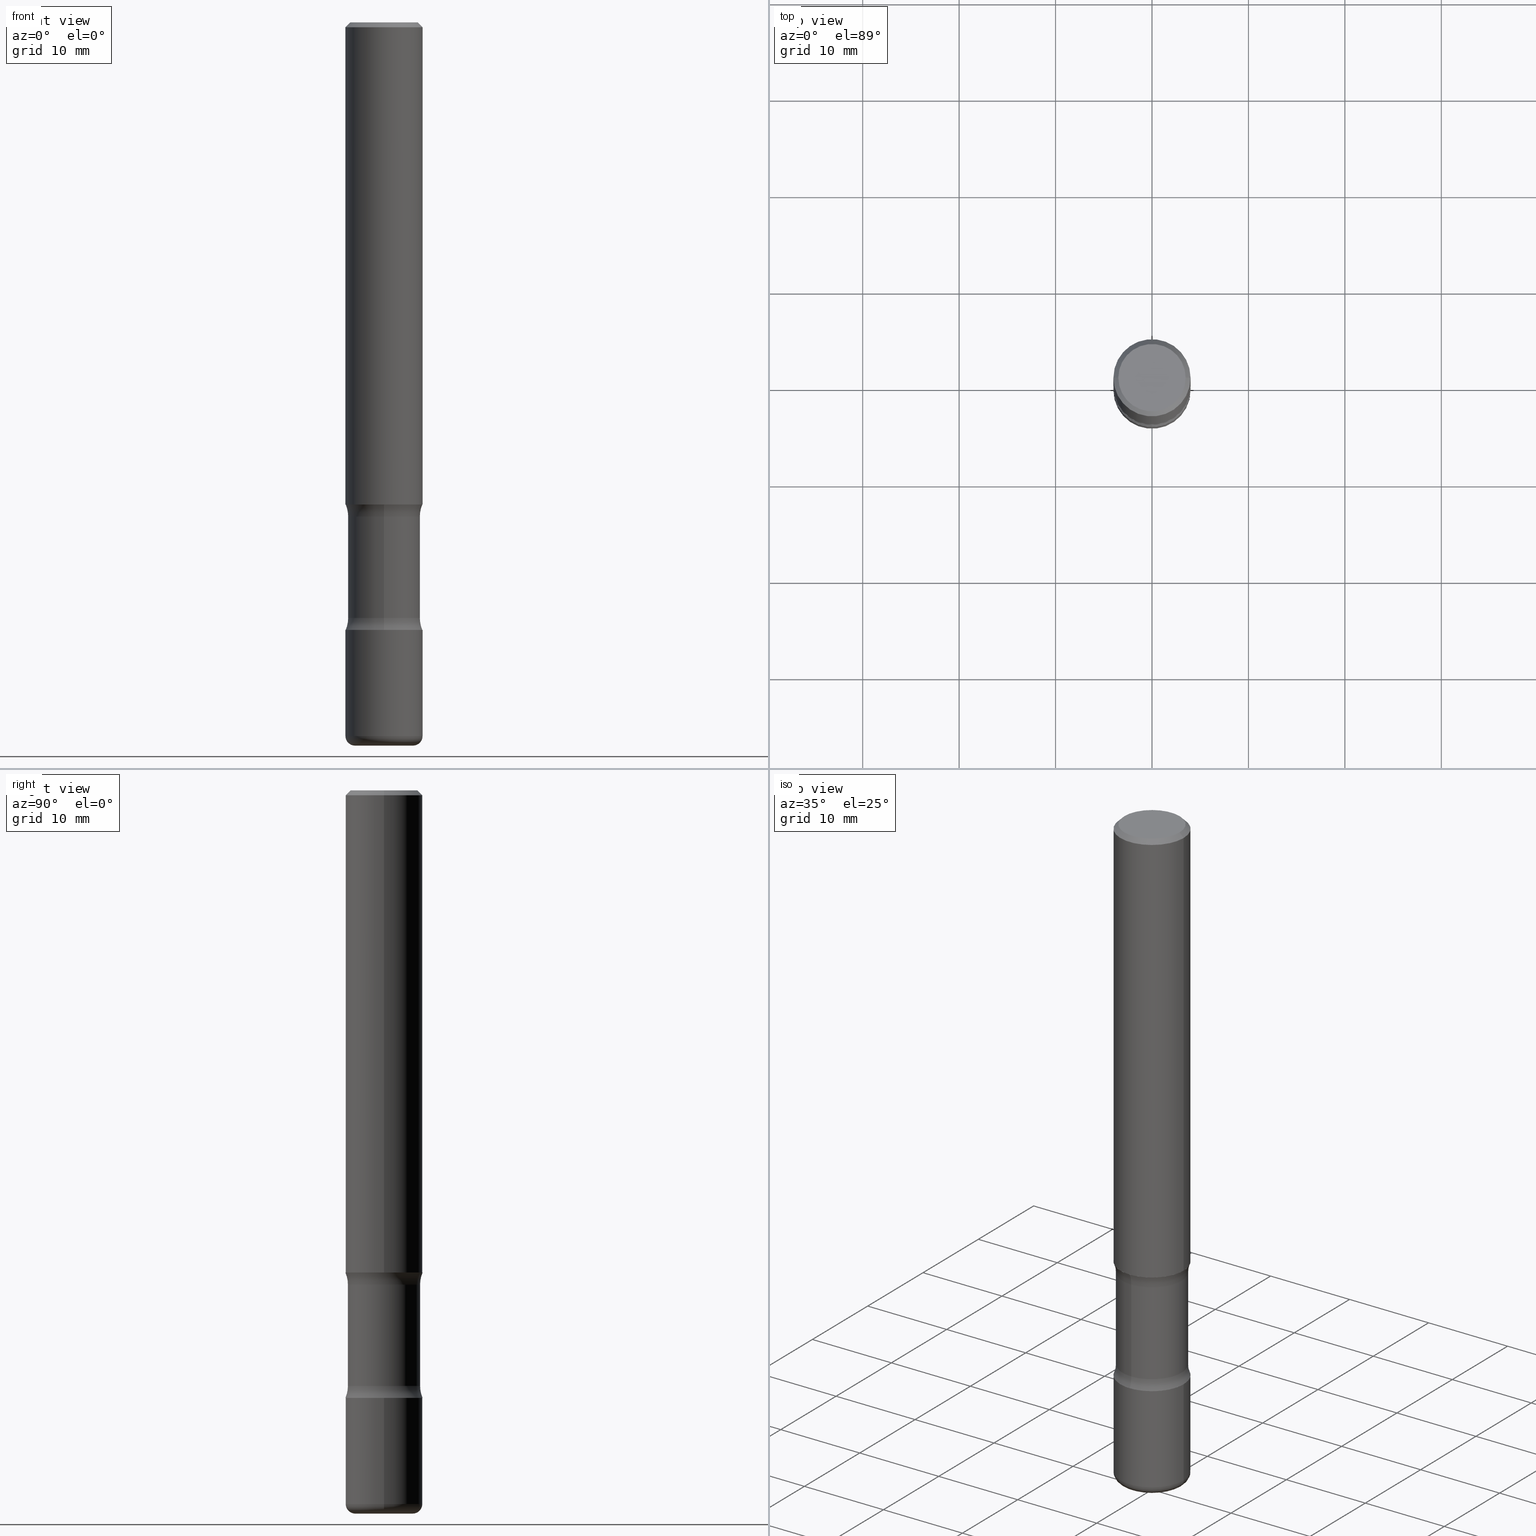
[diagram: canonical four-view strip — front | top / right | iso, engineering-drawing reading convention]
A machine part, canonical four-view strip (front | top / right | iso — engineering-drawing reading convention). The complete STEP part file that produces these views, byte-faithful:
ISO-10303-21;
HEADER;
FILE_DESCRIPTION (( 'STEP AP203' ),
    '1' );
FILE_NAME ('44775.STEP',
    '2024-03-02T03:06:55',
    ( '' ),
    ( '' ),
    'SwSTEP 2.0',
    'SolidWorks 2023',
    '' );
FILE_SCHEMA (( 'CONFIG_CONTROL_DESIGN' ));
ENDSEC;

DATA;
#1 = CARTESIAN_POINT ( 'NONE',  ( 1.099816621735648420E-15, 0.1574999999999914524, -2.480399999999999938 ) ) ;
#2 = VERTEX_POINT ( 'NONE', #127 ) ;
#3 = ORIENTED_EDGE ( 'NONE', *, *, #547, .T. ) ;
#4 = AXIS2_PLACEMENT_3D ( 'NONE', #357, #360, #184 ) ;
#5 = PRODUCT_DEFINITION_FORMATION_WITH_SPECIFIED_SOURCE ( 'ANY', '', #88, .NOT_KNOWN. ) ;
#6 = CARTESIAN_POINT ( 'NONE',  ( 6.065740826861612418E-29, -8.660270312866537270E-15, -2.480399999999999494 ) ) ;
#7 = DIRECTION ( 'NONE',  ( 1.000000000000000000, -6.982962677686265922E-15, 4.876176775795935232E-29 ) ) ;
#8 = VERTEX_POINT ( 'NONE', #423 ) ;
#9 = EDGE_CURVE ( 'NONE', #515, #482, #283, .T. ) ;
#10 = CARTESIAN_POINT ( 'NONE',  ( 0.1575000000000001399, -9.760086934602125539E-15, -2.480399999999999494 ) ) ;
#11 = VERTEX_POINT ( 'NONE', #387 ) ;
#12 = EDGE_CURVE ( 'NONE', #11, #255, #383, .T. ) ;
#13 = AXIS2_PLACEMENT_3D ( 'NONE', #560, #169, #509 ) ;
#14 = CARTESIAN_POINT ( 'NONE',  ( 9.601573681818610811E-16, 0.1374999999999999278, -4.779444278458821021E-16 ) ) ;
#15 = EDGE_LOOP ( 'NONE', ( #29, #273 ) ) ;
#16 = CARTESIAN_POINT ( 'NONE',  ( 5.943628762121094077E-29, -8.490077908476165751E-15, -2.431059575397043204 ) ) ;
#17 = APPROVAL_STATUS ( 'not_yet_approved' ) ;
#18 = DIRECTION ( 'NONE',  ( 6.982962677686265133E-15, 1.000000000000000000, -3.469013325287950138E-15 ) ) ;
#19 = PERSON_AND_ORGANIZATION ( #260, #534 ) ;
#20 = DATE_AND_TIME ( #277, #91 ) ;
#21 = CIRCLE ( 'NONE', #272, 0.1575000000000001399 ) ;
#22 = AXIS2_PLACEMENT_3D ( 'NONE', #6, #94, #439 ) ;
#23 = EDGE_CURVE ( 'NONE', #515, #300, #514, .T. ) ;
#24 = CARTESIAN_POINT ( 'NONE',  ( -1.045711407310277305E-15, -0.1473500000000070587, -2.017840424602955984 ) ) ;
#25 = EDGE_LOOP ( 'NONE', ( #84, #223 ) ) ;
#26 = FACE_OUTER_BOUND ( 'NONE', #218, .T. ) ;
#27 = ORIENTED_EDGE ( 'NONE', *, *, #251, .F. ) ;
#28 = CARTESIAN_POINT ( 'NONE',  ( 6.065740826861612418E-29, -8.660270312866537270E-15, -2.480399999999999494 ) ) ;
#29 = ORIENTED_EDGE ( 'NONE', *, *, #249, .F. ) ;
#30 = DIRECTION ( 'NONE',  ( -6.982962677686265922E-15, -1.000000000000000000, 3.449350218607032856E-15 ) ) ;
#31 = ORIENTED_EDGE ( 'NONE', *, *, #147, .F. ) ;
#32 = CARTESIAN_POINT ( 'NONE',  ( 4.934565814225900815E-29, -7.045252187264551691E-15, -2.017840424602956428 ) ) ;
#33 = CARTESIAN_POINT ( 'NONE',  ( 7.124628819939776708E-29, -1.017208173258561931E-14, -2.913399999999999768 ) ) ;
#34 = CARTESIAN_POINT ( 'NONE',  ( -0.1575000000000001399, -8.297071213903919899E-15, -2.480399999999999494 ) ) ;
#35 = AXIS2_PLACEMENT_3D ( 'NONE', #33, #248, #557 ) ;
#36 = CIRCLE ( 'NONE', #292, 0.1250000000000000555 ) ;
#37 = AXIS2_PLACEMENT_3D ( 'NONE', #280, #362, #529 ) ;
#38 = FACE_OUTER_BOUND ( 'NONE', #113, .T. ) ;
#39 = DIRECTION ( 'NONE',  ( 1.000000000000000000, -6.860497997771530774E-15, 4.841314837039559601E-29 ) ) ;
#40 = ORIENTED_EDGE ( 'NONE', *, *, #309, .T. ) ;
#41 = ORIENTED_EDGE ( 'NONE', *, *, #559, .T. ) ;
#42 = PLANE ( 'NONE',  #488 ) ;
#43 = CIRCLE ( 'NONE', #350, 0.1575000000000001399 ) ;
#44 = EDGE_LOOP ( 'NONE', ( #471, #213, #90, #235 ) ) ;
#45 = TOROIDAL_SURFACE ( 'NONE', #200, 0.1181000000000001632, 0.03940000000000031671 ) ;
#46 = ADVANCED_FACE ( 'NONE', ( #38 ), #380, .F. ) ;
#47 = CYLINDRICAL_SURFACE ( 'NONE', #487, 0.1473500000000000087 ) ;
#48 = ORIENTED_EDGE ( 'NONE', *, *, #110, .F. ) ;
#49 = CARTESIAN_POINT ( 'NONE',  ( 5.945080357611152317E-29, -8.487999141114716497E-15, -2.431059575397043204 ) ) ;
#50 = ORIENTED_EDGE ( 'NONE', *, *, #59, .T. ) ;
#51 = DIRECTION ( 'NONE',  ( -2.445468806185136597E-29, 3.491481338843145583E-15, 1.000000000000000000 ) ) ;
#52 = ORIENTED_EDGE ( 'NONE', *, *, #110, .T. ) ;
#53 = VECTOR ( 'NONE', #303, 39.37007874015748143 ) ;
#54 = EDGE_CURVE ( 'NONE', #349, #482, #270, .T. ) ;
#55 = PERSON_AND_ORGANIZATION ( #260, #534 ) ;
#56 = DIRECTION ( 'NONE',  ( 1.000000000000000000, -6.982962677686265922E-15, 4.876176775795935793E-29 ) ) ;
#57 = PERSON_AND_ORGANIZATION_ROLE ( 'creator' ) ;
#58 = DATE_TIME_ROLE ( 'classification_date' ) ;
#59 = EDGE_CURVE ( 'NONE', #237, #482, #464, .T. ) ;
#60 = CYLINDRICAL_SURFACE ( 'NONE', #330, 0.1575000000000001399 ) ;
#61 = AXIS2_PLACEMENT_3D ( 'NONE', #304, #133, #178 ) ;
#62 = CC_DESIGN_APPROVAL ( #441, ( #256 ) ) ;
#63 = EDGE_LOOP ( 'NONE', ( #239, #131, #155, #543 ) ) ;
#64 = CC_DESIGN_PERSON_AND_ORGANIZATION_ASSIGNMENT ( #321, #57, ( #256 ) ) ;
#65 = CIRCLE ( 'NONE', #378, 0.1374999999999999278 ) ;
#66 = VERTEX_POINT ( 'NONE', #77 ) ;
#67 = DIRECTION ( 'NONE',  ( -2.445468806185136597E-29, 3.491481338843145583E-15, 1.000000000000000000 ) ) ;
#68 = EDGE_LOOP ( 'NONE', ( #71, #201, #460, #435 ) ) ;
#69 = CARTESIAN_POINT ( 'NONE',  ( 6.065740826861612418E-29, -8.660270312866537270E-15, -2.480399999999999494 ) ) ;
#70 = EDGE_CURVE ( 'NONE', #66, #2, #478, .T. ) ;
#71 = ORIENTED_EDGE ( 'NONE', *, *, #249, .T. ) ;
#72 = VECTOR ( 'NONE', #536, 39.37007874015748143 ) ;
#73 = APPROVAL_PERSON_ORGANIZATION ( #144, #394, #276 ) ;
#74 = DIRECTION ( 'NONE',  ( 6.982962677686265133E-15, 1.000000000000000000, -3.469013325287950138E-15 ) ) ;
#75 = DIRECTION ( 'NONE',  ( 1.000000000000000000, -6.982962677686268288E-15, 0.000000000000000000 ) ) ;
#76 = CARTESIAN_POINT ( 'NONE',  ( 0.1181000000000001632, -1.113433398957078995E-14, -2.952800000000000313 ) ) ;
#77 = CARTESIAN_POINT ( 'NONE',  ( -0.1575000000000001676, -2.352300512322635166E-15, -1.968499999999999694 ) ) ;
#78 = AXIS2_PLACEMENT_3D ( 'NONE', #345, #80, #556 ) ;
#79 = CC_DESIGN_APPROVAL ( #394, ( #452 ) ) ;
#80 = DIRECTION ( 'NONE',  ( 2.474888810202925163E-29, -3.449350218607033250E-15, -1.000000000000000000 ) ) ;
#81 = CARTESIAN_POINT ( 'NONE',  ( 5.943628762121094077E-29, -8.490077908476165751E-15, -2.431059575397043204 ) ) ;
#82 = EDGE_LOOP ( 'NONE', ( #27, #426 ) ) ;
#83 = FACE_OUTER_BOUND ( 'NONE', #15, .T. ) ;
#84 = ORIENTED_EDGE ( 'NONE', *, *, #365, .F. ) ;
#85 = MANIFOLD_SOLID_BREP ( 'Body-Move/Copy2[1]', #99 ) ;
#86 = EDGE_CURVE ( 'NONE', #334, #546, #347, .T. ) ;
#87 = DIRECTION ( 'NONE',  ( -2.438088387897960049E-29, 3.491481338843145188E-15, 1.000000000000000000 ) ) ;
#88 = PRODUCT ( '44775', '44775', '', ( #448 ) ) ;
#89 = CIRCLE ( 'NONE', #516, 0.1250000000000000555 ) ;
#90 = ORIENTED_EDGE ( 'NONE', *, *, #150, .T. ) ;
#91 = LOCAL_TIME ( 22, 6, 55.00000000000000000, #101 ) ;
#92 = CARTESIAN_POINT ( 'NONE',  ( -0.1181000000000001632, -9.332930761652938750E-15, -2.913399999999999768 ) ) ;
#93 = DATE_AND_TIME ( #231, #462 ) ;
#94 = DIRECTION ( 'NONE',  ( -2.445468806185136597E-29, 3.491481338843145583E-15, 1.000000000000000000 ) ) ;
#95 = ORIENTED_EDGE ( 'NONE', *, *, #251, .T. ) ;
#96 = APPROVAL_DATE_TIME ( #93, #441 ) ;
#97 = DIRECTION ( 'NONE',  ( 7.105427357601001859E-15, 1.000000000000000000, -3.491481338843145583E-15 ) ) ;
#98 = VERTEX_POINT ( 'NONE', #162 ) ;
#99 = CLOSED_SHELL ( 'NONE', ( #513, #170, #385, #245, #230, #46 ) ) ;
#100 = PERSON_AND_ORGANIZATION ( #260, #534 ) ;
#101 = COORDINATED_UNIVERSAL_TIME_OFFSET ( 5, 0, .BEHIND. ) ;
#102 = EDGE_CURVE ( 'NONE', #334, #328, #65, .T. ) ;
#103 = APPLICATION_PROTOCOL_DEFINITION ( 'international standard', 'config_control_design', 1994, #154 ) ;
#104 = LINE ( 'NONE', #281, #391 ) ;
#105 = DIRECTION ( 'NONE',  ( 2.474888810202925163E-29, -3.449350218607033250E-15, -1.000000000000000000 ) ) ;
#106 = AXIS2_PLACEMENT_3D ( 'NONE', #327, #148, #152 ) ;
#107 = CIRCLE ( 'NONE', #364, 0.03940000000000033753 ) ;
#108 = ORIENTED_EDGE ( 'NONE', *, *, #23, .T. ) ;
#109 = ADVANCED_FACE ( 'NONE', ( #386 ), #373, .F. ) ;
#110 = EDGE_CURVE ( 'NONE', #255, #11, #432, .T. ) ;
#111 = UNCERTAINTY_MEASURE_WITH_UNIT (LENGTH_MEASURE( 1.000000000000000082E-05 ), #537, 'distance_accuracy_value', 'NONE');
#112 = FACE_OUTER_BOUND ( 'NONE', #295, .T. ) ;
#113 = EDGE_LOOP ( 'NONE', ( #525, #151 ) ) ;
#114 = DIRECTION ( 'NONE',  ( 1.000000000000000000, -6.982962677686263555E-15, 0.000000000000000000 ) ) ;
#115 = DIRECTION ( 'NONE',  ( 1.000000000000000000, -6.982962677686265922E-15, 4.876173381029102845E-29 ) ) ;
#116 = VERTEX_POINT ( 'NONE', #34 ) ;
#117 = FACE_OUTER_BOUND ( 'NONE', #457, .T. ) ;
#118 = CC_DESIGN_DATE_AND_TIME_ASSIGNMENT ( #401, #58, ( #452 ) ) ;
#119 = CYLINDRICAL_SURFACE ( 'NONE', #243, 0.1575000000000000289 ) ;
#120 = AXIS2_PLACEMENT_3D ( 'NONE', #49, #136, #434 ) ;
#121 = ORIENTED_EDGE ( 'NONE', *, *, #9, .F. ) ;
#122 = ADVANCED_FACE ( 'NONE', ( #210 ), #554, .T. ) ;
#123 = CARTESIAN_POINT ( 'NONE',  ( 6.065740826861612418E-29, -8.660270312866537270E-15, -2.480399999999999494 ) ) ;
#124 = CARTESIAN_POINT ( 'NONE',  ( -0.1374999999999999278, 9.950721815702923357E-16, 4.268512490093574228E-18 ) ) ;
#125 = CARTESIAN_POINT ( 'NONE',  ( 6.065740826861612418E-29, -8.660270312866537270E-15, -2.480399999999999494 ) ) ;
#126 = EDGE_CURVE ( 'NONE', #300, #515, #43, .T. ) ;
#127 = CARTESIAN_POINT ( 'NONE',  ( 0.1575000000000001676, -7.972797637248319976E-15, -1.968499999999999694 ) ) ;
#128 = EDGE_CURVE ( 'NONE', #198, #316, #356, .T. ) ;
#129 = TOROIDAL_SURFACE ( 'NONE', #322, 0.2723499999999999810, 0.1250000000000000555 ) ;
#130 = AXIS2_PLACEMENT_3D ( 'NONE', #306, #472, #533 ) ;
#131 = ORIENTED_EDGE ( 'NONE', *, *, #9, .T. ) ;
#132 = CARTESIAN_POINT ( 'NONE',  ( 7.234878300801473340E-29, -1.028974335613649852E-14, -2.952799999999999869 ) ) ;
#133 = DIRECTION ( 'NONE',  ( 2.474888810202925163E-29, -3.449350218607033250E-15, -1.000000000000000000 ) ) ;
#134 = DIRECTION ( 'NONE',  ( -1.000000000000000000, 6.982962677686265922E-15, -4.876176775795935793E-29 ) ) ;
#135 = PERSON_AND_ORGANIZATION_ROLE ( 'design_supplier' ) ;
#136 = DIRECTION ( 'NONE',  ( 2.474888810202925163E-29, -3.449350218607033250E-15, -1.000000000000000000 ) ) ;
#137 = ORIENTED_EDGE ( 'NONE', *, *, #86, .T. ) ;
#138 = DIRECTION ( 'NONE',  ( 2.474888810202925163E-29, -3.449350218607033250E-15, -1.000000000000000000 ) ) ;
#139 = PERSON_AND_ORGANIZATION_ROLE ( 'design_owner' ) ;
#140 = CC_DESIGN_PERSON_AND_ORGANIZATION_ASSIGNMENT ( #100, #189, ( #5 ) ) ;
#141 = FACE_OUTER_BOUND ( 'NONE', #353, .T. ) ;
#142 = ORIENTED_EDGE ( 'NONE', *, *, #489, .F. ) ;
#143 = AXIS2_PLACEMENT_3D ( 'NONE', #69, #157, #30 ) ;
#144 = PERSON_AND_ORGANIZATION ( #260, #534 ) ;
#145 = AXIS2_PLACEMENT_3D ( 'NONE', #222, #51, #7 ) ;
#146 = CARTESIAN_POINT ( 'NONE',  ( -1.043851414335219820E-46, 1.490343170380447200E-32, 4.268512490100411279E-18 ) ) ;
#147 = EDGE_CURVE ( 'NONE', #98, #400, #89, .T. ) ;
#148 = DIRECTION ( 'NONE',  ( -2.445468806185136597E-29, 3.491481338843145583E-15, 1.000000000000000000 ) ) ;
#149 = DIRECTION ( 'NONE',  ( 6.982962677686265133E-15, 1.000000000000000000, -3.469013325287950138E-15 ) ) ;
#150 = EDGE_CURVE ( 'NONE', #2, #8, #463, .T. ) ;
#151 = ORIENTED_EDGE ( 'NONE', *, *, #428, .T. ) ;
#152 = DIRECTION ( 'NONE',  ( 1.000000000000000000, -6.982962677686266711E-15, 0.000000000000000000 ) ) ;
#153 = AXIS2_PLACEMENT_3D ( 'NONE', #507, #465, #75 ) ;
#154 = APPLICATION_CONTEXT ( 'configuration controlled 3d designs of mechanical parts and assemblies' ) ;
#155 = ORIENTED_EDGE ( 'NONE', *, *, #259, .T. ) ;
#156 = ADVANCED_FACE ( 'NONE', ( #368 ), #161, .T. ) ;
#157 = DIRECTION ( 'NONE',  ( -2.474888810202925163E-29, 3.449350218607032856E-15, 1.000000000000000000 ) ) ;
#158 = ORIENTED_EDGE ( 'NONE', *, *, #54, .F. ) ;
#159 = CARTESIAN_POINT ( 'NONE',  ( 4.890937612370273159E-31, -6.982962677686291609E-17, -0.02000000000000000042 ) ) ;
#160 = DIRECTION ( 'NONE',  ( 2.474888810202925163E-29, -3.449350218607033250E-15, -1.000000000000000000 ) ) ;
#161 = CONICAL_SURFACE ( 'NONE', #374, 0.1574999999999999178, 0.7853981633974479459 ) ;
#162 = CARTESIAN_POINT ( 'NONE',  ( 1.028939550557120386E-15, 0.1473499999999929033, -2.017840424602956872 ) ) ;
#163 =( GEOMETRIC_REPRESENTATION_CONTEXT ( 3 ) GLOBAL_UNCERTAINTY_ASSIGNED_CONTEXT ( ( #111 ) ) GLOBAL_UNIT_ASSIGNED_CONTEXT ( ( #537, #407, #539 ) ) REPRESENTATION_CONTEXT ( 'NONE', 'WORKASPACE' ) );
#164 = CARTESIAN_POINT ( 'NONE',  ( 1.028939550557130839E-15, 0.1473499999999915433, -2.431059575397043648 ) ) ;
#165 = ADVANCED_FACE ( 'NONE', ( #370 ), #119, .T. ) ;
#166 = DIRECTION ( 'NONE',  ( 6.982962677686265922E-15, 1.000000000000000000, -3.449350218607033250E-15 ) ) ;
#167 = ADVANCED_FACE ( 'NONE', ( #410 ), #376, .F. ) ;
#168 = DIRECTION ( 'NONE',  ( -2.445468806185136597E-29, 3.491481338843145583E-15, 1.000000000000000000 ) ) ;
#169 = DIRECTION ( 'NONE',  ( -2.445468806185136597E-29, 3.491481338843145583E-15, 1.000000000000000000 ) ) ;
#170 = ADVANCED_FACE ( 'NONE', ( #26 ), #209, .T. ) ;
#171 = ORIENTED_EDGE ( 'NONE', *, *, #59, .F. ) ;
#172 = EDGE_CURVE ( 'NONE', #328, #8, #333, .T. ) ;
#173 = AXIS2_PLACEMENT_3D ( 'NONE', #146, #168, #115 ) ;
#174 = ORIENTED_EDGE ( 'NONE', *, *, #220, .T. ) ;
#175 = DIRECTION ( 'NONE',  ( 2.438088387897960049E-29, -3.491481338843145188E-15, -1.000000000000000000 ) ) ;
#176 = EDGE_LOOP ( 'NONE', ( #250, #108 ) ) ;
#177 = CARTESIAN_POINT ( 'NONE',  ( -1.045711407310266063E-15, -0.1473500000000085020, -2.431059575397042760 ) ) ;
#178 = DIRECTION ( 'NONE',  ( 6.982962677686265133E-15, 1.000000000000000000, -3.707971487837480522E-15 ) ) ;
#179 = CIRCLE ( 'NONE', #61, 0.1473499999999999810 ) ;
#180 = ORIENTED_EDGE ( 'NONE', *, *, #409, .T. ) ;
#181 = CC_DESIGN_SECURITY_CLASSIFICATION ( #452, ( #5 ) ) ;
#182 = APPLICATION_PROTOCOL_DEFINITION ( 'international standard', 'config_control_design', 1994, #413 ) ;
#183 = VECTOR ( 'NONE', #381, 39.37007874015748143 ) ;
#184 = DIRECTION ( 'NONE',  ( 1.000000000000000000, -6.982962677686267499E-15, 4.876176775795935232E-29 ) ) ;
#185 = ORIENTED_EDGE ( 'NONE', *, *, #447, .T. ) ;
#186 = APPROVAL_STATUS ( 'not_yet_approved' ) ;
#187 = EDGE_CURVE ( 'NONE', #255, #408, #421, .T. ) ;
#188 = DIRECTION ( 'NONE',  ( 6.982962677686265922E-15, 1.000000000000000000, -3.449350218607032856E-15 ) ) ;
#189 = PERSON_AND_ORGANIZATION_ROLE ( 'creator' ) ;
#190 = EDGE_CURVE ( 'NONE', #8, #546, #225, .T. ) ;
#191 = CIRCLE ( 'NONE', #503, 0.1575000000000001399 ) ;
#192 = APPROVAL_ROLE ( '' ) ;
#193 = DIRECTION ( 'NONE',  ( -2.445468806185136597E-29, 3.491481338843145583E-15, 1.000000000000000000 ) ) ;
#194 = CC_DESIGN_PERSON_AND_ORGANIZATION_ASSIGNMENT ( #318, #135, ( #5 ) ) ;
#195 = DIRECTION ( 'NONE',  ( -6.982962677686265922E-15, -1.000000000000000000, 0.000000000000000000 ) ) ;
#196 = ORIENTED_EDGE ( 'NONE', *, *, #172, .F. ) ;
#197 = CARTESIAN_POINT ( 'NONE',  ( 4.813905344975440714E-29, -6.872981015512730918E-15, -1.968499999999999694 ) ) ;
#198 = VERTEX_POINT ( 'NONE', #418 ) ;
#199 = CARTESIAN_POINT ( 'NONE',  ( 7.220980290903472425E-29, -1.030964609733604011E-14, -2.952800000000000313 ) ) ;
#200 = AXIS2_PLACEMENT_3D ( 'NONE', #541, #287, #456 ) ;
#201 = ORIENTED_EDGE ( 'NONE', *, *, #282, .T. ) ;
#202 = DIRECTION ( 'NONE',  ( 2.474888810202925163E-29, -3.449350218607033250E-15, -1.000000000000000000 ) ) ;
#203 = DIRECTION ( 'NONE',  ( -2.445468806185136877E-29, 3.491481338843145188E-15, 1.000000000000000000 ) ) ;
#204 =( LENGTH_UNIT ( ) NAMED_UNIT ( * ) SI_UNIT ( $, .METRE. ) );
#205 = DIRECTION ( 'NONE',  ( 2.474888810202925163E-29, -3.449350218607033250E-15, -1.000000000000000000 ) ) ;
#206 = DIRECTION ( 'NONE',  ( 2.474888810202925163E-29, -3.449350218607033250E-15, -1.000000000000000000 ) ) ;
#207 = ADVANCED_FACE ( 'NONE', ( #548 ), #443, .F. ) ;
#208 = DIRECTION ( 'NONE',  ( -1.000000000000000000, 6.982962677686265922E-15, -4.883557194083112340E-29 ) ) ;
#209 = TOROIDAL_SURFACE ( 'NONE', #233, 0.1181000000000001632, 0.03940000000000031671 ) ;
#210 = FACE_OUTER_BOUND ( 'NONE', #518, .T. ) ;
#211 = LOCAL_TIME ( 22, 6, 55.00000000000000000, #442 ) ;
#212 = DIRECTION ( 'NONE',  ( 6.860497997771530774E-15, 1.000000000000000000, 0.000000000000000000 ) ) ;
#213 = ORIENTED_EDGE ( 'NONE', *, *, #70, .T. ) ;
#214 = FACE_OUTER_BOUND ( 'NONE', #332, .T. ) ;
#215 = ORIENTED_EDGE ( 'NONE', *, *, #12, .F. ) ;
#216 = CIRCLE ( 'NONE', #294, 0.1181000000000001632 ) ;
#217 = DIRECTION ( 'NONE',  ( 2.438088387897960049E-29, -3.491481338843145188E-15, -1.000000000000000000 ) ) ;
#218 = EDGE_LOOP ( 'NONE', ( #95, #358, #48, #346 ) ) ;
#219 = DIRECTION ( 'NONE',  ( -6.982962677686266711E-15, -1.000000000000000000, 3.491481338843145583E-15 ) ) ;
#220 = EDGE_CURVE ( 'NONE', #11, #116, #104, .T. ) ;
#221 = ORIENTED_EDGE ( 'NONE', *, *, #437, .T. ) ;
#222 = CARTESIAN_POINT ( 'NONE',  ( 0.000000000000000000, 0.000000000000000000, 0.000000000000000000 ) ) ;
#223 = ORIENTED_EDGE ( 'NONE', *, *, #409, .F. ) ;
#224 = CYLINDRICAL_SURFACE ( 'NONE', #4, 0.1575000000000000289 ) ;
#225 = CIRCLE ( 'NONE', #106, 0.1574999999999999178 ) ;
#226 = ORIENTED_EDGE ( 'NONE', *, *, #428, .F. ) ;
#227 = DATE_AND_TIME ( #403, #433 ) ;
#228 = FACE_OUTER_BOUND ( 'NONE', #25, .T. ) ;
#229 = COORDINATED_UNIVERSAL_TIME_OFFSET ( 5, 0, .BEHIND. ) ;
#230 = ADVANCED_FACE ( 'NONE', ( #331 ), #60, .T. ) ;
#231 = CALENDAR_DATE ( 2024, 1, 3 ) ;
#232 = CC_DESIGN_PERSON_AND_ORGANIZATION_ASSIGNMENT ( #55, #490, ( #452 ) ) ;
#233 = AXIS2_PLACEMENT_3D ( 'NONE', #293, #242, #493 ) ;
#234 = APPROVAL_PERSON_ORGANIZATION ( #19, #458, #268 ) ;
#235 = ORIENTED_EDGE ( 'NONE', *, *, #550, .F. ) ;
#236 = DIRECTION ( 'NONE',  ( 1.000000000000000000, -6.982962677686267499E-15, 4.876176775795935232E-29 ) ) ;
#237 = VERTEX_POINT ( 'NONE', #24 ) ;
#238 = DIRECTION ( 'NONE',  ( 1.000000000000000000, -6.982962677686267499E-15, 0.000000000000000000 ) ) ;
#239 = ORIENTED_EDGE ( 'NONE', *, *, #23, .F. ) ;
#240 = CARTESIAN_POINT ( 'NONE',  ( -0.1574999999999999178, 1.029986994958723590E-15, -0.02000000000000000042 ) ) ;
#241 = VECTOR ( 'NONE', #549, 39.37007874015748143 ) ;
#242 = DIRECTION ( 'NONE',  ( -2.445468806185136597E-29, 3.491481338843145583E-15, 1.000000000000000000 ) ) ;
#243 = AXIS2_PLACEMENT_3D ( 'NONE', #491, #379, #236 ) ;
#244 = LOCAL_TIME ( 22, 6, 55.00000000000000000, #229 ) ;
#245 = ADVANCED_FACE ( 'NONE', ( #112 ), #45, .T. ) ;
#246 = DIRECTION ( 'NONE',  ( 1.000000000000000000, -6.982962677686265922E-15, 4.876173381029102845E-29 ) ) ;
#247 = CARTESIAN_POINT ( 'NONE',  ( 0.1574999999999999178, -1.150358061425878486E-15, -0.02000000000000000042 ) ) ;
#248 = DIRECTION ( 'NONE',  ( -2.445468806185136597E-29, 3.491481338843145583E-15, 1.000000000000000000 ) ) ;
#249 = EDGE_CURVE ( 'NONE', #2, #66, #461, .T. ) ;
#250 = ORIENTED_EDGE ( 'NONE', *, *, #126, .T. ) ;
#251 = EDGE_CURVE ( 'NONE', #316, #198, #216, .T. ) ;
#252 = VECTOR ( 'NONE', #538, 39.37007874015748143 ) ;
#253 = DIRECTION ( 'NONE',  ( 1.000000000000000000, -6.860497997771530774E-15, 4.841314837039559601E-29 ) ) ;
#254 = DIRECTION ( 'NONE',  ( -2.445468806185136597E-29, 3.491481338843145583E-15, 1.000000000000000000 ) ) ;
#255 = VERTEX_POINT ( 'NONE', #475 ) ;
#256 = PRODUCT_DEFINITION ( 'UNKNOWN', '', #5, #336 ) ;
#257 = CARTESIAN_POINT ( 'NONE',  ( 4.813905344975440714E-29, -6.872981015512730918E-15, -1.968499999999999694 ) ) ;
#258 = CIRCLE ( 'NONE', #339, 0.1575000000000001399 ) ;
#259 = EDGE_CURVE ( 'NONE', #482, #349, #284, .T. ) ;
#260 = PERSON ( 'UNSPECIFIED', 'UNSPECIFIED', 'UNSPECIFIED', ('UNSPECIFIED'), ('UNSPECIFIED'), ('UNSPECIFIED') ) ;
#261 = AXIS2_PLACEMENT_3D ( 'NONE', #257, #521, #188 ) ;
#262 = FACE_OUTER_BOUND ( 'NONE', #494, .T. ) ;
#263 = DIRECTION ( 'NONE',  ( -2.445468806185136597E-29, 3.491481338843145583E-15, 1.000000000000000000 ) ) ;
#264 = PERSON_AND_ORGANIZATION ( #260, #534 ) ;
#265 = DIMENSIONAL_EXPONENTS ( 1.000000000000000000, 0.000000000000000000, 0.000000000000000000, 0.000000000000000000, 0.000000000000000000, 0.000000000000000000, 0.000000000000000000 ) ;
#266 = CARTESIAN_POINT ( 'NONE',  ( 6.065740826861612418E-29, -8.660270312866537270E-15, -2.480399999999999494 ) ) ;
#267 = ORIENTED_EDGE ( 'NONE', *, *, #365, .T. ) ;
#268 = APPROVAL_ROLE ( '' ) ;
#269 = MANIFOLD_SOLID_BREP ( 'Body-Move/Copy2[2]', #553 ) ;
#270 = CIRCLE ( 'NONE', #415, 0.1473500000000000087 ) ;
#271 = DIRECTION ( 'NONE',  ( -1.000000000000000000, 7.105427357601014480E-15, 0.000000000000000000 ) ) ;
#272 = AXIS2_PLACEMENT_3D ( 'NONE', #298, #424, #505 ) ;
#273 = ORIENTED_EDGE ( 'NONE', *, *, #70, .F. ) ;
#274 = CIRCLE ( 'NONE', #444, 0.1473499999999999810 ) ;
#275 = ADVANCED_FACE ( 'NONE', ( #117 ), #389, .T. ) ;
#276 = APPROVAL_ROLE ( '' ) ;
#277 = CALENDAR_DATE ( 2024, 1, 3 ) ;
#278 = MANIFOLD_SOLID_BREP ( 'Body-Move/Copy2[4]', #310 ) ;
#279 = LENGTH_MEASURE_WITH_UNIT ( LENGTH_MEASURE( 0.02539999999999999897 ), #204 );
#280 = CARTESIAN_POINT ( 'NONE',  ( 0.000000000000000000, 0.000000000000000000, 0.000000000000000000 ) ) ;
#281 = CARTESIAN_POINT ( 'NONE',  ( -0.1575000000000001399, 1.119104808822158787E-15, -7.747322767151482590E-30 ) ) ;
#282 = EDGE_CURVE ( 'NONE', #66, #546, #348, .T. ) ;
#283 = CIRCLE ( 'NONE', #542, 0.1250000000000000000 ) ;
#284 = CIRCLE ( 'NONE', #425, 0.1473500000000000087 ) ;
#285 = DIRECTION ( 'NONE',  ( 2.474888810202925163E-29, -3.449350218607033250E-15, -1.000000000000000000 ) ) ;
#286 = ORIENTED_EDGE ( 'NONE', *, *, #187, .T. ) ;
#287 = DIRECTION ( 'NONE',  ( -2.445468806185136597E-29, 3.491481338843145583E-15, 1.000000000000000000 ) ) ;
#288 = ORIENTED_EDGE ( 'NONE', *, *, #147, .T. ) ;
#289 = EDGE_CURVE ( 'NONE', #237, #540, #36, .T. ) ;
#290 = CARTESIAN_POINT ( 'NONE',  ( 0.1575000000000000289, -1.099816621735587283E-15, 7.679978421878599434E-30 ) ) ;
#291 = EDGE_LOOP ( 'NONE', ( #411, #369, #288, #267 ) ) ;
#292 = AXIS2_PLACEMENT_3D ( 'NONE', #510, #39, #420 ) ;
#293 = CARTESIAN_POINT ( 'NONE',  ( 7.124628819939776708E-29, -1.017208173258561931E-14, -2.913399999999999768 ) ) ;
#294 = AXIS2_PLACEMENT_3D ( 'NONE', #412, #519, #511 ) ;
#295 = EDGE_LOOP ( 'NONE', ( #500, #450, #221, #215 ) ) ;
#296 = FACE_OUTER_BOUND ( 'NONE', #63, .T. ) ;
#297 = CARTESIAN_POINT ( 'NONE',  ( 5.945080357611152317E-29, -8.487999141114716497E-15, -2.431059575397043204 ) ) ;
#298 = CARTESIAN_POINT ( 'NONE',  ( 4.798845244918734808E-29, -6.894547935961596556E-15, -1.968499999999999694 ) ) ;
#299 = DIRECTION ( 'NONE',  ( 2.474888810202925163E-29, -3.449350218607033250E-15, -1.000000000000000000 ) ) ;
#300 = VERTEX_POINT ( 'NONE', #1 ) ;
#301 = AXIS2_PLACEMENT_3D ( 'NONE', #123, #422, #502 ) ;
#302 = CARTESIAN_POINT ( 'NONE',  ( -1.868456629693017352E-15, -0.2723500000000085297, -2.431059575397042316 ) ) ;
#303 = DIRECTION ( 'NONE',  ( -2.445468806185136877E-29, 3.491481338843145188E-15, 1.000000000000000000 ) ) ;
#304 = CARTESIAN_POINT ( 'NONE',  ( 4.920957309659253149E-29, -7.064740340351969652E-15, -2.017840424602956428 ) ) ;
#305 = EDGE_LOOP ( 'NONE', ( #372, #558, #286, #226 ) ) ;
#306 = CARTESIAN_POINT ( 'NONE',  ( 4.890937612370273159E-31, -6.982962677686291609E-17, -0.02000000000000000042 ) ) ;
#307 = PLANE ( 'NONE',  #375 ) ;
#308 = ORIENTED_EDGE ( 'NONE', *, *, #259, .F. ) ;
#309 = EDGE_CURVE ( 'NONE', #300, #349, #363, .T. ) ;
#310 = CLOSED_SHELL ( 'NONE', ( #275, #371, #343, #207, #530, #167, #109, #392 ) ) ;
#311 = AXIS2_PLACEMENT_3D ( 'NONE', #344, #466, #338 ) ;
#312 = CIRCLE ( 'NONE', #22, 0.1575000000000001399 ) ;
#313 = CARTESIAN_POINT ( 'NONE',  ( 4.798845244918734808E-29, -6.894547935961596556E-15, -1.968499999999999694 ) ) ;
#314 = DATE_AND_TIME ( #523, #244 ) ;
#315 = CARTESIAN_POINT ( 'NONE',  ( 0.1181000000000001632, -1.099676962482036915E-14, -2.913399999999999768 ) ) ;
#316 = VERTEX_POINT ( 'NONE', #76 ) ;
#317 = PRODUCT_DEFINITION_SHAPE ( 'NONE', 'NONE',  #256 ) ;
#318 = PERSON_AND_ORGANIZATION ( #260, #534 ) ;
#319 = PLANE ( 'NONE',  #404 ) ;
#320 = ORIENTED_EDGE ( 'NONE', *, *, #86, .F. ) ;
#321 = PERSON_AND_ORGANIZATION ( #260, #534 ) ;
#322 = AXIS2_PLACEMENT_3D ( 'NONE', #32, #205, #551 ) ;
#323 = APPROVAL_PERSON_ORGANIZATION ( #264, #441, #192 ) ;
#324 = PRODUCT_RELATED_PRODUCT_CATEGORY ( 'detail', '', ( #88 ) ) ;
#325 = PERSON_AND_ORGANIZATION ( #260, #534 ) ;
#326 = CARTESIAN_POINT ( 'NONE',  ( 4.934565814225900815E-29, -7.045252187264551691E-15, -2.017840424602956428 ) ) ;
#327 = CARTESIAN_POINT ( 'NONE',  ( 4.890937612370273159E-31, -6.982962677686291609E-17, -0.02000000000000000042 ) ) ;
#328 = VERTEX_POINT ( 'NONE', #429 ) ;
#329 = AXIS2_PLACEMENT_3D ( 'NONE', #125, #299, #74 ) ;
#330 = AXIS2_PLACEMENT_3D ( 'NONE', #406, #499, #496 ) ;
#331 = FACE_OUTER_BOUND ( 'NONE', #305, .T. ) ;
#332 = EDGE_LOOP ( 'NONE', ( #351, #485, #180, #31 ) ) ;
#333 = LINE ( 'NONE', #247, #252 ) ;
#334 = VERTEX_POINT ( 'NONE', #124 ) ;
#335 = DIRECTION ( 'NONE',  ( 6.982962677686265133E-15, 1.000000000000000000, -3.707971487837480522E-15 ) ) ;
#336 = DESIGN_CONTEXT ( 'detailed design', #413, 'design' ) ;
#337 = DIRECTION ( 'NONE',  ( -1.000000000000000000, 6.982962677686265922E-15, -4.883557194083112340E-29 ) ) ;
#338 = DIRECTION ( 'NONE',  ( -1.000000000000000000, 6.982962677686266711E-15, 0.000000000000000000 ) ) ;
#339 = AXIS2_PLACEMENT_3D ( 'NONE', #266, #263, #520 ) ;
#340 = CIRCLE ( 'NONE', #173, 0.1374999999999999278 ) ;
#341 = CARTESIAN_POINT ( 'NONE',  ( -1.043851414335219820E-46, 1.490343170380447200E-32, 4.268512490100411279E-18 ) ) ;
#342 = ADVANCED_BREP_SHAPE_REPRESENTATION ( '44775', ( #85, #269, #278, #37 ), #163 ) ;
#343 = ADVANCED_FACE ( 'NONE', ( #214 ), #129, .F. ) ;
#344 = CARTESIAN_POINT ( 'NONE',  ( 4.890937612370273159E-31, -6.982962677686291609E-17, -0.02000000000000000042 ) ) ;
#345 = CARTESIAN_POINT ( 'NONE',  ( 7.234878300801473340E-29, -1.028974335613649852E-14, -2.952799999999999869 ) ) ;
#346 = ORIENTED_EDGE ( 'NONE', *, *, #437, .F. ) ;
#347 = LINE ( 'NONE', #512, #183 ) ;
#348 = LINE ( 'NONE', #508, #53 ) ;
#349 = VERTEX_POINT ( 'NONE', #164 ) ;
#350 = AXIS2_PLACEMENT_3D ( 'NONE', #28, #105, #149 ) ;
#351 = ORIENTED_EDGE ( 'NONE', *, *, #547, .F. ) ;
#352 = DIRECTION ( 'NONE',  ( 2.474888810202925163E-29, -3.449350218607033250E-15, -1.000000000000000000 ) ) ;
#353 = EDGE_LOOP ( 'NONE', ( #171, #3, #185, #308 ) ) ;
#354 = FACE_OUTER_BOUND ( 'NONE', #68, .T. ) ;
#355 = COORDINATED_UNIVERSAL_TIME_OFFSET ( 5, 0, .BEHIND. ) ;
#356 = CIRCLE ( 'NONE', #476, 0.1181000000000001632 ) ;
#357 = CARTESIAN_POINT ( 'NONE',  ( 0.000000000000000000, 0.000000000000000000, 0.000000000000000000 ) ) ;
#358 = ORIENTED_EDGE ( 'NONE', *, *, #506, .T. ) ;
#359 = COORDINATED_UNIVERSAL_TIME_OFFSET ( 5, 0, .BEHIND. ) ;
#360 = DIRECTION ( 'NONE',  ( -2.445468806185136597E-29, 3.491481338843145583E-15, 1.000000000000000000 ) ) ;
#361 = ORIENTED_EDGE ( 'NONE', *, *, #190, .T. ) ;
#362 = DIRECTION ( 'NONE',  ( 0.000000000000000000, 0.000000000000000000, 1.000000000000000000 ) ) ;
#363 = CIRCLE ( 'NONE', #417, 0.1250000000000000000 ) ;
#364 = AXIS2_PLACEMENT_3D ( 'NONE', #92, #97, #271 ) ;
#365 = EDGE_CURVE ( 'NONE', #400, #540, #21, .T. ) ;
#366 = APPROVAL_DATE_TIME ( #20, #394 ) ;
#367 = CARTESIAN_POINT ( 'NONE',  ( 0.1575000000000001399, -1.099816621735587875E-15, 7.679978421878605039E-30 ) ) ;
#368 = FACE_OUTER_BOUND ( 'NONE', #397, .T. ) ;
#369 = ORIENTED_EDGE ( 'NONE', *, *, #430, .F. ) ;
#370 = FACE_OUTER_BOUND ( 'NONE', #44, .T. ) ;
#371 = ADVANCED_FACE ( 'NONE', ( #296 ), #384, .F. ) ;
#372 = ORIENTED_EDGE ( 'NONE', *, *, #220, .F. ) ;
#373 = TOROIDAL_SURFACE ( 'NONE', #532, 0.2723500000000000365, 0.1250000000000000000 ) ;
#374 = AXIS2_PLACEMENT_3D ( 'NONE', #159, #459, #501 ) ;
#375 = AXIS2_PLACEMENT_3D ( 'NONE', #445, #87, #56 ) ;
#376 = PLANE ( 'NONE',  #143 ) ;
#377 = ORIENTED_EDGE ( 'NONE', *, *, #430, .T. ) ;
#378 = AXIS2_PLACEMENT_3D ( 'NONE', #341, #254, #246 ) ;
#379 = DIRECTION ( 'NONE',  ( -2.445468806185136597E-29, 3.491481338843145583E-15, 1.000000000000000000 ) ) ;
#380 = PLANE ( 'NONE',  #301 ) ;
#381 = DIRECTION ( 'NONE',  ( -0.7071067811865472397, 2.468850131082253905E-15, -0.7071067811865477948 ) ) ;
#382 = DIRECTION ( 'NONE',  ( -6.982962677686265922E-15, -1.000000000000000000, 0.000000000000000000 ) ) ;
#383 = CIRCLE ( 'NONE', #35, 0.1575000000000001399 ) ;
#384 = TOROIDAL_SURFACE ( 'NONE', #120, 0.2723500000000000365, 0.1250000000000000000 ) ;
#385 = ADVANCED_FACE ( 'NONE', ( #399 ), #319, .T. ) ;
#386 = FACE_OUTER_BOUND ( 'NONE', #552, .T. ) ;
#387 = CARTESIAN_POINT ( 'NONE',  ( -0.1575000000000003064, -9.052976923763458555E-15, -2.913399999999999768 ) ) ;
#388 = ORIENTED_EDGE ( 'NONE', *, *, #102, .T. ) ;
#389 = CYLINDRICAL_SURFACE ( 'NONE', #78, 0.1473500000000000087 ) ;
#390 = ORIENTED_EDGE ( 'NONE', *, *, #447, .F. ) ;
#391 = VECTOR ( 'NONE', #449, 39.37007874015748143 ) ;
#392 = ADVANCED_FACE ( 'NONE', ( #141 ), #47, .T. ) ;
#393 = CARTESIAN_POINT ( 'NONE',  ( -1.080528434648956220E-15, -0.1575000000000087719, -2.480399999999999050 ) ) ;
#394 = APPROVAL ( #17, 'UNSPECIFIED' ) ;
#395 = CYLINDRICAL_SURFACE ( 'NONE', #145, 0.1575000000000001399 ) ;
#396 = DIRECTION ( 'NONE',  ( 6.982962677686265133E-15, 1.000000000000000000, -3.707971487837479733E-15 ) ) ;
#397 = EDGE_LOOP ( 'NONE', ( #454, #414, #361, #320 ) ) ;
#398 = AXIS2_PLACEMENT_3D ( 'NONE', #315, #219, #473 ) ;
#399 = FACE_OUTER_BOUND ( 'NONE', #82, .T. ) ;
#400 = VERTEX_POINT ( 'NONE', #431 ) ;
#401 = DATE_AND_TIME ( #483, #211 ) ;
#402 = PLANE ( 'NONE',  #261 ) ;
#403 = CALENDAR_DATE ( 2024, 1, 3 ) ;
#404 = AXIS2_PLACEMENT_3D ( 'NONE', #524, #175, #134 ) ;
#405 = ADVANCED_FACE ( 'NONE', ( #354 ), #224, .T. ) ;
#406 = CARTESIAN_POINT ( 'NONE',  ( 0.000000000000000000, 0.000000000000000000, 0.000000000000000000 ) ) ;
#407 =( NAMED_UNIT ( * ) PLANE_ANGLE_UNIT ( ) SI_UNIT ( $, .RADIAN. ) );
#408 = VERTEX_POINT ( 'NONE', #10 ) ;
#409 = EDGE_CURVE ( 'NONE', #540, #400, #191, .T. ) ;
#410 = FACE_OUTER_BOUND ( 'NONE', #176, .T. ) ;
#411 = ORIENTED_EDGE ( 'NONE', *, *, #289, .F. ) ;
#412 = CARTESIAN_POINT ( 'NONE',  ( 7.220980290903472425E-29, -1.030964609733604011E-14, -2.952800000000000313 ) ) ;
#413 = APPLICATION_CONTEXT ( 'configuration controlled 3d designs of mechanical parts and assemblies' ) ;
#414 = ORIENTED_EDGE ( 'NONE', *, *, #172, .T. ) ;
#415 = AXIS2_PLACEMENT_3D ( 'NONE', #81, #206, #419 ) ;
#416 = CARTESIAN_POINT ( 'NONE',  ( 4.920957309659253149E-29, -7.064740340351969652E-15, -2.017840424602956428 ) ) ;
#417 = AXIS2_PLACEMENT_3D ( 'NONE', #468, #208, #382 ) ;
#418 = CARTESIAN_POINT ( 'NONE',  ( -0.1181000000000001632, -9.261736025083409837E-15, -2.952800000000000313 ) ) ;
#419 = DIRECTION ( 'NONE',  ( 6.982962677686266711E-15, 1.000000000000000000, -3.707971487837479733E-15 ) ) ;
#420 = DIRECTION ( 'NONE',  ( 6.860497997771530774E-15, 1.000000000000000000, 0.000000000000000000 ) ) ;
#421 = LINE ( 'NONE', #367, #451 ) ;
#422 = DIRECTION ( 'NONE',  ( 2.438088387897960049E-29, -3.491481338843145188E-15, -1.000000000000000000 ) ) ;
#423 = CARTESIAN_POINT ( 'NONE',  ( 0.1574999999999999178, -1.150358061425878486E-15, -0.02000000000000000042 ) ) ;
#424 = DIRECTION ( 'NONE',  ( 2.474888810202925163E-29, -3.449350218607033250E-15, -1.000000000000000000 ) ) ;
#425 = AXIS2_PLACEMENT_3D ( 'NONE', #16, #138, #446 ) ;
#426 = ORIENTED_EDGE ( 'NONE', *, *, #128, .F. ) ;
#427 = ORIENTED_EDGE ( 'NONE', *, *, #187, .F. ) ;
#428 = EDGE_CURVE ( 'NONE', #116, #408, #258, .T. ) ;
#429 = CARTESIAN_POINT ( 'NONE',  ( 0.1374999999999999278, -1.046838268059731900E-15, 4.268512490107428597E-18 ) ) ;
#430 = EDGE_CURVE ( 'NONE', #98, #237, #179, .T. ) ;
#431 = CARTESIAN_POINT ( 'NONE',  ( 1.099816621735635798E-15, 0.1574999999999932565, -1.968500000000000361 ) ) ;
#432 = CIRCLE ( 'NONE', #153, 0.1575000000000001399 ) ;
#433 = LOCAL_TIME ( 22, 6, 55.00000000000000000, #359 ) ;
#434 = DIRECTION ( 'NONE',  ( 6.982962677686265922E-15, 1.000000000000000000, -3.449350218607033250E-15 ) ) ;
#435 = ORIENTED_EDGE ( 'NONE', *, *, #150, .F. ) ;
#436 = DIRECTION ( 'NONE',  ( 2.474888810202925163E-29, -3.449350218607033250E-15, -1.000000000000000000 ) ) ;
#437 = EDGE_CURVE ( 'NONE', #316, #255, #495, .T. ) ;
#438 = SECURITY_CLASSIFICATION_LEVEL ( 'unclassified' ) ;
#439 = DIRECTION ( 'NONE',  ( 1.000000000000000000, -6.982962677686268288E-15, 0.000000000000000000 ) ) ;
#440 = ORIENTED_EDGE ( 'NONE', *, *, #126, .F. ) ;
#441 = APPROVAL ( #186, 'UNSPECIFIED' ) ;
#442 = COORDINATED_UNIVERSAL_TIME_OFFSET ( 5, 0, .BEHIND. ) ;
#443 = TOROIDAL_SURFACE ( 'NONE', #522, 0.2723499999999999810, 0.1250000000000000555 ) ;
#444 = AXIS2_PLACEMENT_3D ( 'NONE', #416, #202, #335 ) ;
#445 = CARTESIAN_POINT ( 'NONE',  ( 4.813905344975440714E-29, -6.872981015512730918E-15, -1.968499999999999694 ) ) ;
#446 = DIRECTION ( 'NONE',  ( 6.982962677686266711E-15, 1.000000000000000000, -3.707971487837479733E-15 ) ) ;
#447 = EDGE_CURVE ( 'NONE', #98, #349, #527, .T. ) ;
#448 = MECHANICAL_CONTEXT ( 'NONE', #154, 'mechanical' ) ;
#449 = DIRECTION ( 'NONE',  ( -2.445468806185136877E-29, 3.491481338843145188E-15, 1.000000000000000000 ) ) ;
#450 = ORIENTED_EDGE ( 'NONE', *, *, #128, .T. ) ;
#451 = VECTOR ( 'NONE', #203, 39.37007874015748143 ) ;
#452 = SECURITY_CLASSIFICATION ( '', '', #438 ) ;
#453 = DIRECTION ( 'NONE',  ( 6.982962677686265922E-15, 1.000000000000000000, -3.449350218607033250E-15 ) ) ;
#454 = ORIENTED_EDGE ( 'NONE', *, *, #559, .F. ) ;
#455 = ADVANCED_FACE ( 'NONE', ( #484 ), #42, .F. ) ;
#456 = DIRECTION ( 'NONE',  ( 1.000000000000000000, -6.982962677686264344E-15, 4.883557194083112340E-29 ) ) ;
#457 = EDGE_LOOP ( 'NONE', ( #377, #50, #158, #390 ) ) ;
#458 = APPROVAL ( #480, 'UNSPECIFIED' ) ;
#459 = DIRECTION ( 'NONE',  ( 2.445468806185136597E-29, -3.491481338843145583E-15, -1.000000000000000000 ) ) ;
#460 = ORIENTED_EDGE ( 'NONE', *, *, #190, .F. ) ;
#461 = CIRCLE ( 'NONE', #544, 0.1575000000000001676 ) ;
#462 = LOCAL_TIME ( 22, 6, 55.00000000000000000, #355 ) ;
#463 = LINE ( 'NONE', #290, #72 ) ;
#464 = LINE ( 'NONE', #467, #241 ) ;
#465 = DIRECTION ( 'NONE',  ( -2.445468806185136597E-29, 3.491481338843145583E-15, 1.000000000000000000 ) ) ;
#466 = DIRECTION ( 'NONE',  ( 2.445468806185136597E-29, -3.491481338843145583E-15, -1.000000000000000000 ) ) ;
#467 = CARTESIAN_POINT ( 'NONE',  ( -1.010894379971562693E-15, -0.1473500000000103061, -2.952799999999998981 ) ) ;
#468 = CARTESIAN_POINT ( 'NONE',  ( 1.901809885267914178E-15, 0.2723499999999915433, -2.431059575397044092 ) ) ;
#469 = EDGE_LOOP ( 'NONE', ( #388, #41 ) ) ;
#470 = DIRECTION ( 'NONE',  ( 2.474888810202925163E-29, -3.449350218607032856E-15, -1.000000000000000000 ) ) ;
#471 = ORIENTED_EDGE ( 'NONE', *, *, #282, .F. ) ;
#472 = DIRECTION ( 'NONE',  ( -2.445468806185136597E-29, 3.491481338843145583E-15, 1.000000000000000000 ) ) ;
#473 = DIRECTION ( 'NONE',  ( 1.000000000000000000, -6.982962677686268288E-15, 0.000000000000000000 ) ) ;
#474 = ORIENTED_EDGE ( 'NONE', *, *, #102, .F. ) ;
#475 = CARTESIAN_POINT ( 'NONE',  ( 0.1575000000000003064, -1.127189835432120758E-14, -2.913399999999999768 ) ) ;
#476 = AXIS2_PLACEMENT_3D ( 'NONE', #199, #193, #114 ) ;
#477 = CIRCLE ( 'NONE', #130, 0.1574999999999999178 ) ;
#478 = CIRCLE ( 'NONE', #13, 0.1575000000000001676 ) ;
#479 = DIRECTION ( 'NONE',  ( -1.000000000000000000, 6.982962677686265922E-15, -4.876176775795935793E-29 ) ) ;
#480 = APPROVAL_STATUS ( 'not_yet_approved' ) ;
#481 = CARTESIAN_POINT ( 'NONE',  ( 1.028939550557143658E-15, 0.1473499999999897114, -2.952800000000000313 ) ) ;
#482 = VERTEX_POINT ( 'NONE', #177 ) ;
#483 = CALENDAR_DATE ( 2024, 1, 3 ) ;
#484 = FACE_OUTER_BOUND ( 'NONE', #469, .T. ) ;
#485 = ORIENTED_EDGE ( 'NONE', *, *, #289, .T. ) ;
#486 = APPROVAL_DATE_TIME ( #227, #458 ) ;
#487 = AXIS2_PLACEMENT_3D ( 'NONE', #132, #352, #396 ) ;
#488 = AXIS2_PLACEMENT_3D ( 'NONE', #14, #217, #479 ) ;
#489 = EDGE_CURVE ( 'NONE', #408, #116, #312, .T. ) ;
#490 = PERSON_AND_ORGANIZATION_ROLE ( 'classification_officer' ) ;
#491 = CARTESIAN_POINT ( 'NONE',  ( 0.000000000000000000, 0.000000000000000000, 0.000000000000000000 ) ) ;
#492 = CC_DESIGN_PERSON_AND_ORGANIZATION_ASSIGNMENT ( #325, #139, ( #88 ) ) ;
#493 = DIRECTION ( 'NONE',  ( 1.000000000000000000, -6.982962677686264344E-15, 4.883557194083112340E-29 ) ) ;
#494 = EDGE_LOOP ( 'NONE', ( #52, #174, #142, #427 ) ) ;
#495 = CIRCLE ( 'NONE', #398, 0.03940000000000033753 ) ;
#496 = DIRECTION ( 'NONE',  ( 1.000000000000000000, -6.982962677686265922E-15, 4.876176775795935232E-29 ) ) ;
#497 = ORIENTED_EDGE ( 'NONE', *, *, #54, .T. ) ;
#498 = CC_DESIGN_DATE_AND_TIME_ASSIGNMENT ( #314, #531, ( #256 ) ) ;
#499 = DIRECTION ( 'NONE',  ( -2.445468806185136597E-29, 3.491481338843145583E-15, 1.000000000000000000 ) ) ;
#500 = ORIENTED_EDGE ( 'NONE', *, *, #506, .F. ) ;
#501 = DIRECTION ( 'NONE',  ( -1.000000000000000000, 6.982962677686266711E-15, 0.000000000000000000 ) ) ;
#502 = DIRECTION ( 'NONE',  ( -1.000000000000000000, 6.982962677686265922E-15, -4.876176775795935793E-29 ) ) ;
#503 = AXIS2_PLACEMENT_3D ( 'NONE', #313, #436, #18 ) ;
#504 = VECTOR ( 'NONE', #470, 39.37007874015748143 ) ;
#505 = DIRECTION ( 'NONE',  ( 6.982962677686265133E-15, 1.000000000000000000, -3.469013325287950138E-15 ) ) ;
#506 = EDGE_CURVE ( 'NONE', #198, #11, #107, .T. ) ;
#507 = CARTESIAN_POINT ( 'NONE',  ( 7.124628819939776708E-29, -1.017208173258561931E-14, -2.913399999999999768 ) ) ;
#508 = CARTESIAN_POINT ( 'NONE',  ( -0.1575000000000000289, 1.119104808822157998E-15, -7.747322767151478386E-30 ) ) ;
#509 = DIRECTION ( 'NONE',  ( 1.000000000000000000, -6.982962677686267499E-15, 0.000000000000000000 ) ) ;
#510 = CARTESIAN_POINT ( 'NONE',  ( -1.868456629693027212E-15, -0.2723500000000070309, -2.017840424602955540 ) ) ;
#511 = DIRECTION ( 'NONE',  ( 1.000000000000000000, -6.982962677686263555E-15, 0.000000000000000000 ) ) ;
#512 = CARTESIAN_POINT ( 'NONE',  ( -0.1574999999999999178, 1.029986994958723590E-15, -0.02000000000000000042 ) ) ;
#513 = ADVANCED_FACE ( 'NONE', ( #262 ), #395, .T. ) ;
#514 = CIRCLE ( 'NONE', #329, 0.1575000000000001399 ) ;
#515 = VERTEX_POINT ( 'NONE', #393 ) ;
#516 = AXIS2_PLACEMENT_3D ( 'NONE', #545, #337, #195 ) ;
#517 = CARTESIAN_POINT ( 'NONE',  ( -1.080528434648969237E-15, -0.1575000000000070233, -1.968499999999999472 ) ) ;
#518 = EDGE_LOOP ( 'NONE', ( #196, #474, #137, #528 ) ) ;
#519 = DIRECTION ( 'NONE',  ( -2.445468806185136597E-29, 3.491481338843145583E-15, 1.000000000000000000 ) ) ;
#520 = DIRECTION ( 'NONE',  ( 1.000000000000000000, -6.982962677686268288E-15, 0.000000000000000000 ) ) ;
#521 = DIRECTION ( 'NONE',  ( 2.474888810202925163E-29, -3.449350218607032856E-15, -1.000000000000000000 ) ) ;
#522 = AXIS2_PLACEMENT_3D ( 'NONE', #326, #285, #453 ) ;
#523 = CALENDAR_DATE ( 2024, 1, 3 ) ;
#524 = CARTESIAN_POINT ( 'NONE',  ( -2.318185164268729241E-29, -2.397027396472270413E-14, -2.952800000000000313 ) ) ;
#525 = ORIENTED_EDGE ( 'NONE', *, *, #489, .T. ) ;
#526 = ADVANCED_FACE ( 'NONE', ( #83 ), #307, .F. ) ;
#527 = LINE ( 'NONE', #481, #504 ) ;
#528 = ORIENTED_EDGE ( 'NONE', *, *, #550, .T. ) ;
#529 = DIRECTION ( 'NONE',  ( 1.000000000000000000, 0.000000000000000000, 0.000000000000000000 ) ) ;
#530 = ADVANCED_FACE ( 'NONE', ( #228 ), #402, .F. ) ;
#531 = DATE_TIME_ROLE ( 'creation_date' ) ;
#532 = AXIS2_PLACEMENT_3D ( 'NONE', #297, #160, #166 ) ;
#533 = DIRECTION ( 'NONE',  ( 1.000000000000000000, -6.982962677686266711E-15, 0.000000000000000000 ) ) ;
#534 = ORGANIZATION ( 'UNSPECIFIED', 'UNSPECIFIED', '' ) ;
#535 = SHAPE_DEFINITION_REPRESENTATION ( #317, #342 ) ;
#536 = DIRECTION ( 'NONE',  ( -2.445468806185136877E-29, 3.491481338843145188E-15, 1.000000000000000000 ) ) ;
#537 =( CONVERSION_BASED_UNIT ( 'INCH', #279 ) LENGTH_UNIT ( ) NAMED_UNIT ( #265 ) );
#538 = DIRECTION ( 'NONE',  ( 0.7071067811865472397, -7.319954787623254468E-15, -0.7071067811865477948 ) ) ;
#539 =( NAMED_UNIT ( * ) SI_UNIT ( $, .STERADIAN. ) SOLID_ANGLE_UNIT ( ) );
#540 = VERTEX_POINT ( 'NONE', #517 ) ;
#541 = CARTESIAN_POINT ( 'NONE',  ( 7.124628819939776708E-29, -1.017208173258561931E-14, -2.913399999999999768 ) ) ;
#542 = AXIS2_PLACEMENT_3D ( 'NONE', #302, #253, #212 ) ;
#543 = ORIENTED_EDGE ( 'NONE', *, *, #309, .F. ) ;
#544 = AXIS2_PLACEMENT_3D ( 'NONE', #197, #67, #238 ) ;
#545 = CARTESIAN_POINT ( 'NONE',  ( 1.901809885267903923E-15, 0.2723499999999929866, -2.017840424602957317 ) ) ;
#546 = VERTEX_POINT ( 'NONE', #240 ) ;
#547 = EDGE_CURVE ( 'NONE', #237, #98, #274, .T. ) ;
#548 = FACE_OUTER_BOUND ( 'NONE', #291, .T. ) ;
#549 = DIRECTION ( 'NONE',  ( 2.474888810202925163E-29, -3.449350218607032856E-15, -1.000000000000000000 ) ) ;
#550 = EDGE_CURVE ( 'NONE', #546, #8, #477, .T. ) ;
#551 = DIRECTION ( 'NONE',  ( 6.982962677686265922E-15, 1.000000000000000000, -3.449350218607033250E-15 ) ) ;
#552 = EDGE_LOOP ( 'NONE', ( #121, #440, #40, #497 ) ) ;
#553 = CLOSED_SHELL ( 'NONE', ( #405, #156, #122, #455, #526, #165 ) ) ;
#554 = CONICAL_SURFACE ( 'NONE', #311, 0.1574999999999999178, 0.7853981633974479459 ) ;
#555 = CC_DESIGN_APPROVAL ( #458, ( #5 ) ) ;
#556 = DIRECTION ( 'NONE',  ( 6.982962677686265133E-15, 1.000000000000000000, -3.707971487837479733E-15 ) ) ;
#557 = DIRECTION ( 'NONE',  ( 1.000000000000000000, -6.982962677686268288E-15, 0.000000000000000000 ) ) ;
#558 = ORIENTED_EDGE ( 'NONE', *, *, #12, .T. ) ;
#559 = EDGE_CURVE ( 'NONE', #328, #334, #340, .T. ) ;
#560 = CARTESIAN_POINT ( 'NONE',  ( 4.813905344975440714E-29, -6.872981015512730918E-15, -1.968499999999999694 ) ) ;
ENDSEC;
END-ISO-10303-21;
